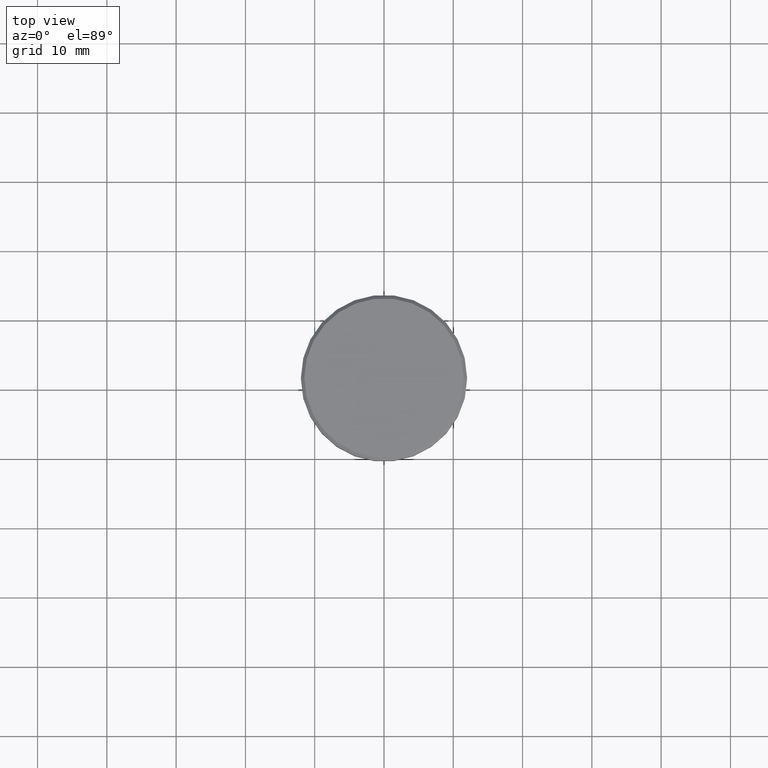
[diagram: clean part render]
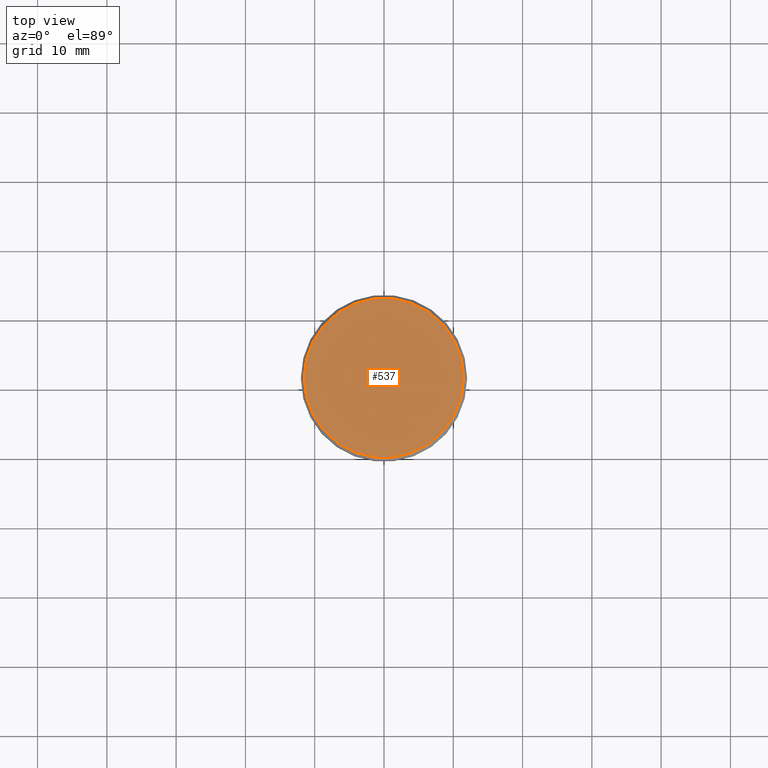
[diagram: same view with one face highlighted and labeled with its STEP entity id]
A machine part, top view. The second image highlights one B-rep face of the part: STEP entity #537.
In plain terms, the highlighted planar face has unit normal (0, -0, 1).
Its self-contained STEP definition (entity closure, byte-faithful):
#59 = PLANE ( 'NONE',  #596 ) ;
#81 = DIRECTION ( 'NONE',  ( 1.000000000000000000, 0.000000000000000000, 0.000000000000000000 ) ) ;
#129 = ORIENTED_EDGE ( 'NONE', *, *, #1163, .T. ) ;
#216 = DIRECTION ( 'NONE',  ( -0.000000000000000000, -0.000000000000000000, 1.000000000000000000 ) ) ;
#374 = CIRCLE ( 'NONE', #757, 11.49999999999998046 ) ;
#375 = AXIS2_PLACEMENT_3D ( 'NONE', #1036, #216, #578 ) ;
#455 = VERTEX_POINT ( 'NONE', #1033 ) ;
#537 = ADVANCED_FACE ( 'NONE', ( #877 ), #59, .T. ) ;
#578 = DIRECTION ( 'NONE',  ( 1.000000000000000000, 0.000000000000000000, 0.000000000000000000 ) ) ;
#596 = AXIS2_PLACEMENT_3D ( 'NONE', #791, #954, #691 ) ;
#660 = EDGE_CURVE ( 'NONE', #455, #988, #374, .T. ) ;
#691 = DIRECTION ( 'NONE',  ( 1.000000000000000000, 0.000000000000000000, 0.000000000000000000 ) ) ;
#710 = CARTESIAN_POINT ( 'NONE',  ( 0.000000000000000000, 0.000000000000000000, 0.000000000000000000 ) ) ;
#715 = ORIENTED_EDGE ( 'NONE', *, *, #660, .T. ) ;
#744 = EDGE_LOOP ( 'NONE', ( #715, #129 ) ) ;
#757 = AXIS2_PLACEMENT_3D ( 'NONE', #710, #1084, #81 ) ;
#791 = CARTESIAN_POINT ( 'NONE',  ( 0.000000000000000000, 0.000000000000000000, 0.000000000000000000 ) ) ;
#877 = FACE_OUTER_BOUND ( 'NONE', #744, .T. ) ;
#954 = DIRECTION ( 'NONE',  ( 0.000000000000000000, -0.000000000000000000, 1.000000000000000000 ) ) ;
#988 = VERTEX_POINT ( 'NONE', #1007 ) ;
#1007 = CARTESIAN_POINT ( 'NONE',  ( 11.49999999999998046, 1.438959988998138582E-15, 0.000000000000000000 ) ) ;
#1033 = CARTESIAN_POINT ( 'NONE',  ( -11.49999999999998046, 0.000000000000000000, 0.000000000000000000 ) ) ;
#1036 = CARTESIAN_POINT ( 'NONE',  ( 0.000000000000000000, 0.000000000000000000, 0.000000000000000000 ) ) ;
#1084 = DIRECTION ( 'NONE',  ( -0.000000000000000000, -0.000000000000000000, 1.000000000000000000 ) ) ;
#1160 = CIRCLE ( 'NONE', #375, 11.49999999999998046 ) ;
#1163 = EDGE_CURVE ( 'NONE', #988, #455, #1160, .T. ) ;